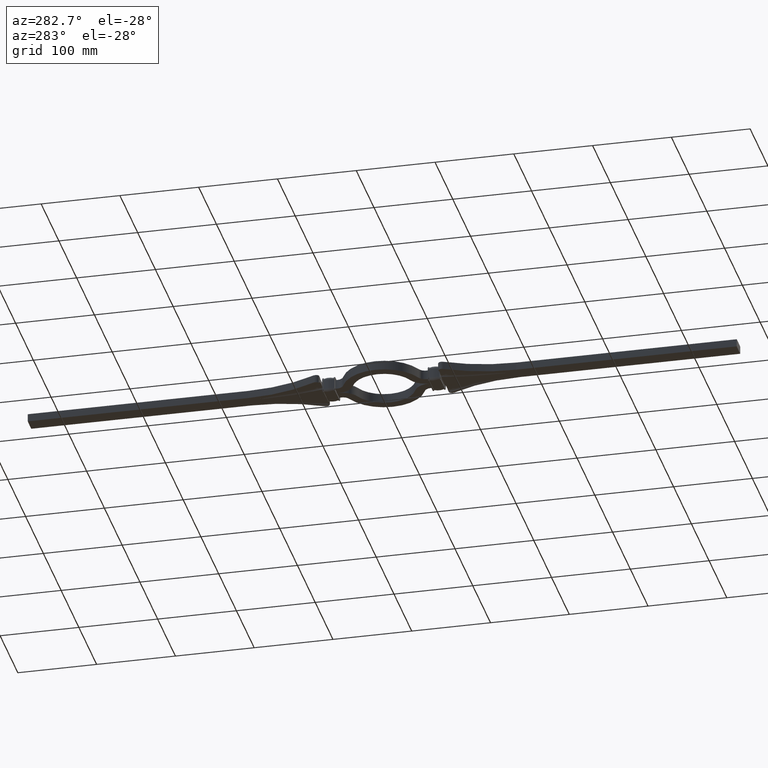
[diagram: clean part render]
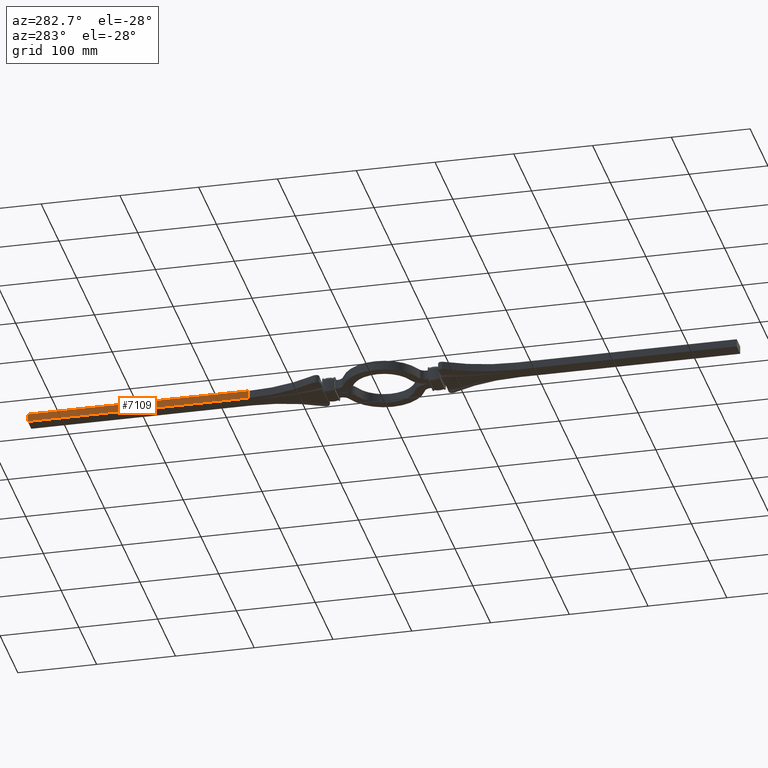
[diagram: same view with one face highlighted and labeled with its STEP entity id]
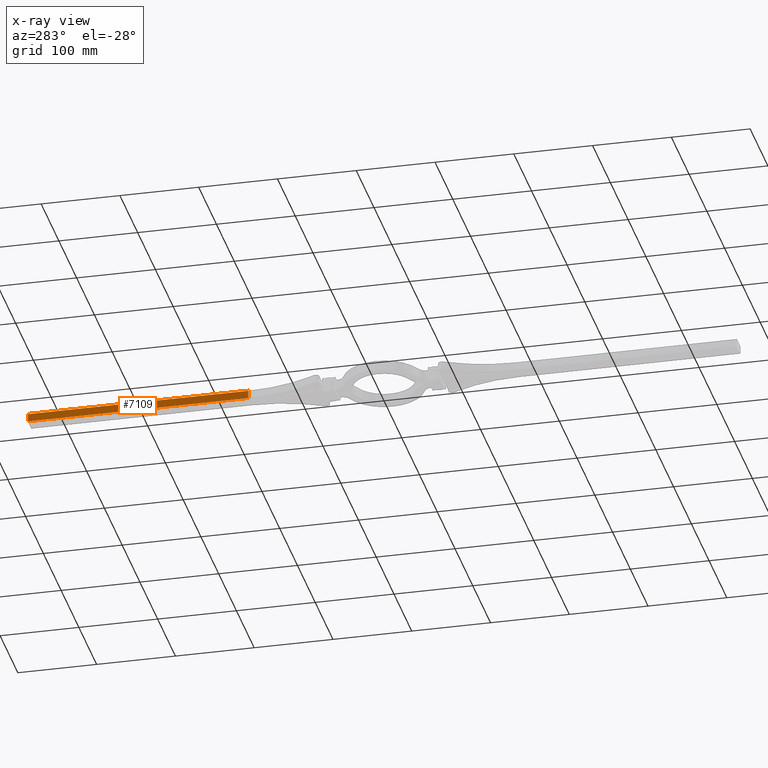
[diagram: x-ray of the same camera — body ghosted, the highlighted face saturated]
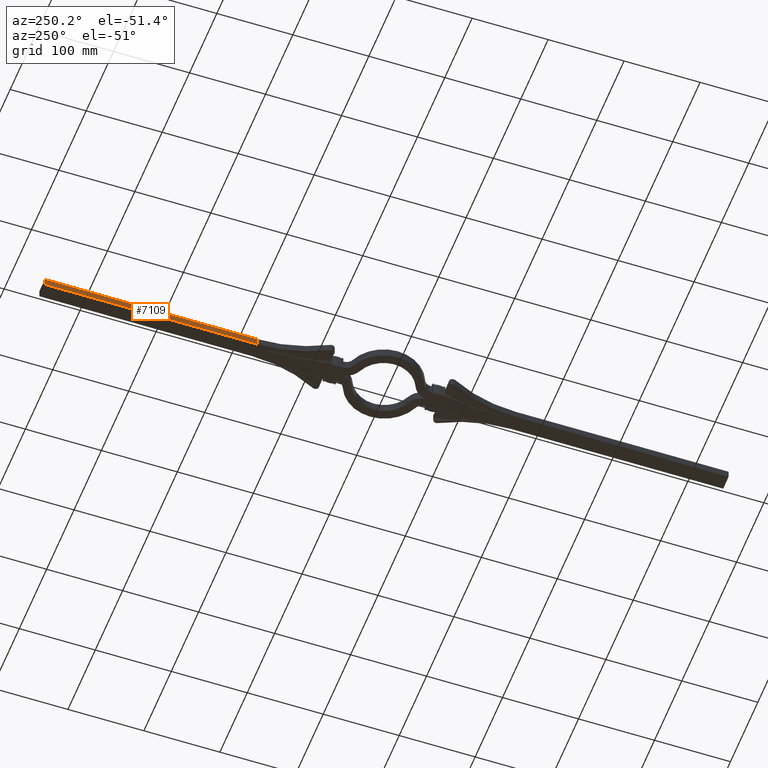
[diagram: same view with one face highlighted and labeled with its STEP entity id]
A machine part, auxiliary view. The second image highlights one B-rep face of the part: STEP entity #7109.
The next image is the same camera in x-ray: the body ghosted, the highlighted face saturated — about 0% of this face is hidden behind the body in this view.
A second angle (auxiliary view) of the same face is appended — the face is thin or edge-on in the first view.
In plain terms, the highlighted planar face has unit normal (1, -0, 0).
Its self-contained STEP definition (entity closure, byte-faithful):
#253 = LINE ( 'NONE', #16260, #22935 ) ;
#2387 = VECTOR ( 'NONE', #19439, 1000.000000000000000 ) ;
#3913 = DIRECTION ( 'NONE',  ( -1.362997016838919825E-16, -1.000000000000000000, 0.000000000000000000 ) ) ;
#5288 = VERTEX_POINT ( 'NONE', #18596 ) ;
#5641 = PLANE ( 'NONE',  #7493 ) ;
#7109 = ADVANCED_FACE ( 'NONE', ( #8989 ), #5641, .F. ) ;
#7132 = CARTESIAN_POINT ( 'NONE',  ( -9.999999999999998224, 450.0000000000000000, 5.000000000000000000 ) ) ;
#7354 = EDGE_CURVE ( 'NONE', #10589, #10451, #23981, .T. ) ;
#7493 = AXIS2_PLACEMENT_3D ( 'NONE', #7132, #9028, #20551 ) ;
#7618 = CARTESIAN_POINT ( 'NONE',  ( -9.999999999999998224, 450.0000000000000000, -5.000000000000000000 ) ) ;
#8247 = LINE ( 'NONE', #11859, #2387 ) ;
#8866 = CARTESIAN_POINT ( 'NONE',  ( -9.999999999999998224, 450.0000000000000000, 5.000000000000000000 ) ) ;
#8989 = FACE_OUTER_BOUND ( 'NONE', #15077, .T. ) ;
#9028 = DIRECTION ( 'NONE',  ( 1.000000000000000000, -1.362997016838919825E-16, 0.000000000000000000 ) ) ;
#10451 = VERTEX_POINT ( 'NONE', #18017 ) ;
#10589 = VERTEX_POINT ( 'NONE', #22047 ) ;
#10910 = ORIENTED_EDGE ( 'NONE', *, *, #7354, .T. ) ;
#11015 = VECTOR ( 'NONE', #22032, 1000.000000000000000 ) ;
#11265 = ORIENTED_EDGE ( 'NONE', *, *, #24321, .F. ) ;
#11859 = CARTESIAN_POINT ( 'NONE',  ( -10.00000000000006395, 170.0000000000000284, 5.000000000000000000 ) ) ;
#11916 = EDGE_CURVE ( 'NONE', #5288, #10589, #253, .T. ) ;
#14254 = DIRECTION ( 'NONE',  ( -0.000000000000000000, -0.000000000000000000, -1.000000000000000000 ) ) ;
#15077 = EDGE_LOOP ( 'NONE', ( #10910, #11265, #15372, #15242 ) ) ;
#15242 = ORIENTED_EDGE ( 'NONE', *, *, #11916, .T. ) ;
#15372 = ORIENTED_EDGE ( 'NONE', *, *, #21342, .F. ) ;
#16260 = CARTESIAN_POINT ( 'NONE',  ( -9.999999999999998224, 450.0000000000000000, 5.000000000000000000 ) ) ;
#17124 = CARTESIAN_POINT ( 'NONE',  ( -10.00000000000006395, 170.0000000000000284, 5.000000000000000000 ) ) ;
#18017 = CARTESIAN_POINT ( 'NONE',  ( -10.00000000000006395, 170.0000000000000284, -5.000000000000000000 ) ) ;
#18596 = CARTESIAN_POINT ( 'NONE',  ( -9.999999999999998224, 450.0000000000000000, 5.000000000000000000 ) ) ;
#19439 = DIRECTION ( 'NONE',  ( -0.000000000000000000, -0.000000000000000000, -1.000000000000000000 ) ) ;
#20118 = LINE ( 'NONE', #8866, #11015 ) ;
#20551 = DIRECTION ( 'NONE',  ( 1.362997016838919825E-16, 1.000000000000000000, 0.000000000000000000 ) ) ;
#21151 = VERTEX_POINT ( 'NONE', #17124 ) ;
#21342 = EDGE_CURVE ( 'NONE', #5288, #21151, #20118, .T. ) ;
#22032 = DIRECTION ( 'NONE',  ( -1.362997016838919825E-16, -1.000000000000000000, 0.000000000000000000 ) ) ;
#22047 = CARTESIAN_POINT ( 'NONE',  ( -9.999999999999998224, 450.0000000000000000, -5.000000000000000000 ) ) ;
#22935 = VECTOR ( 'NONE', #14254, 1000.000000000000000 ) ;
#23378 = VECTOR ( 'NONE', #3913, 1000.000000000000000 ) ;
#23981 = LINE ( 'NONE', #7618, #23378 ) ;
#24321 = EDGE_CURVE ( 'NONE', #21151, #10451, #8247, .T. ) ;